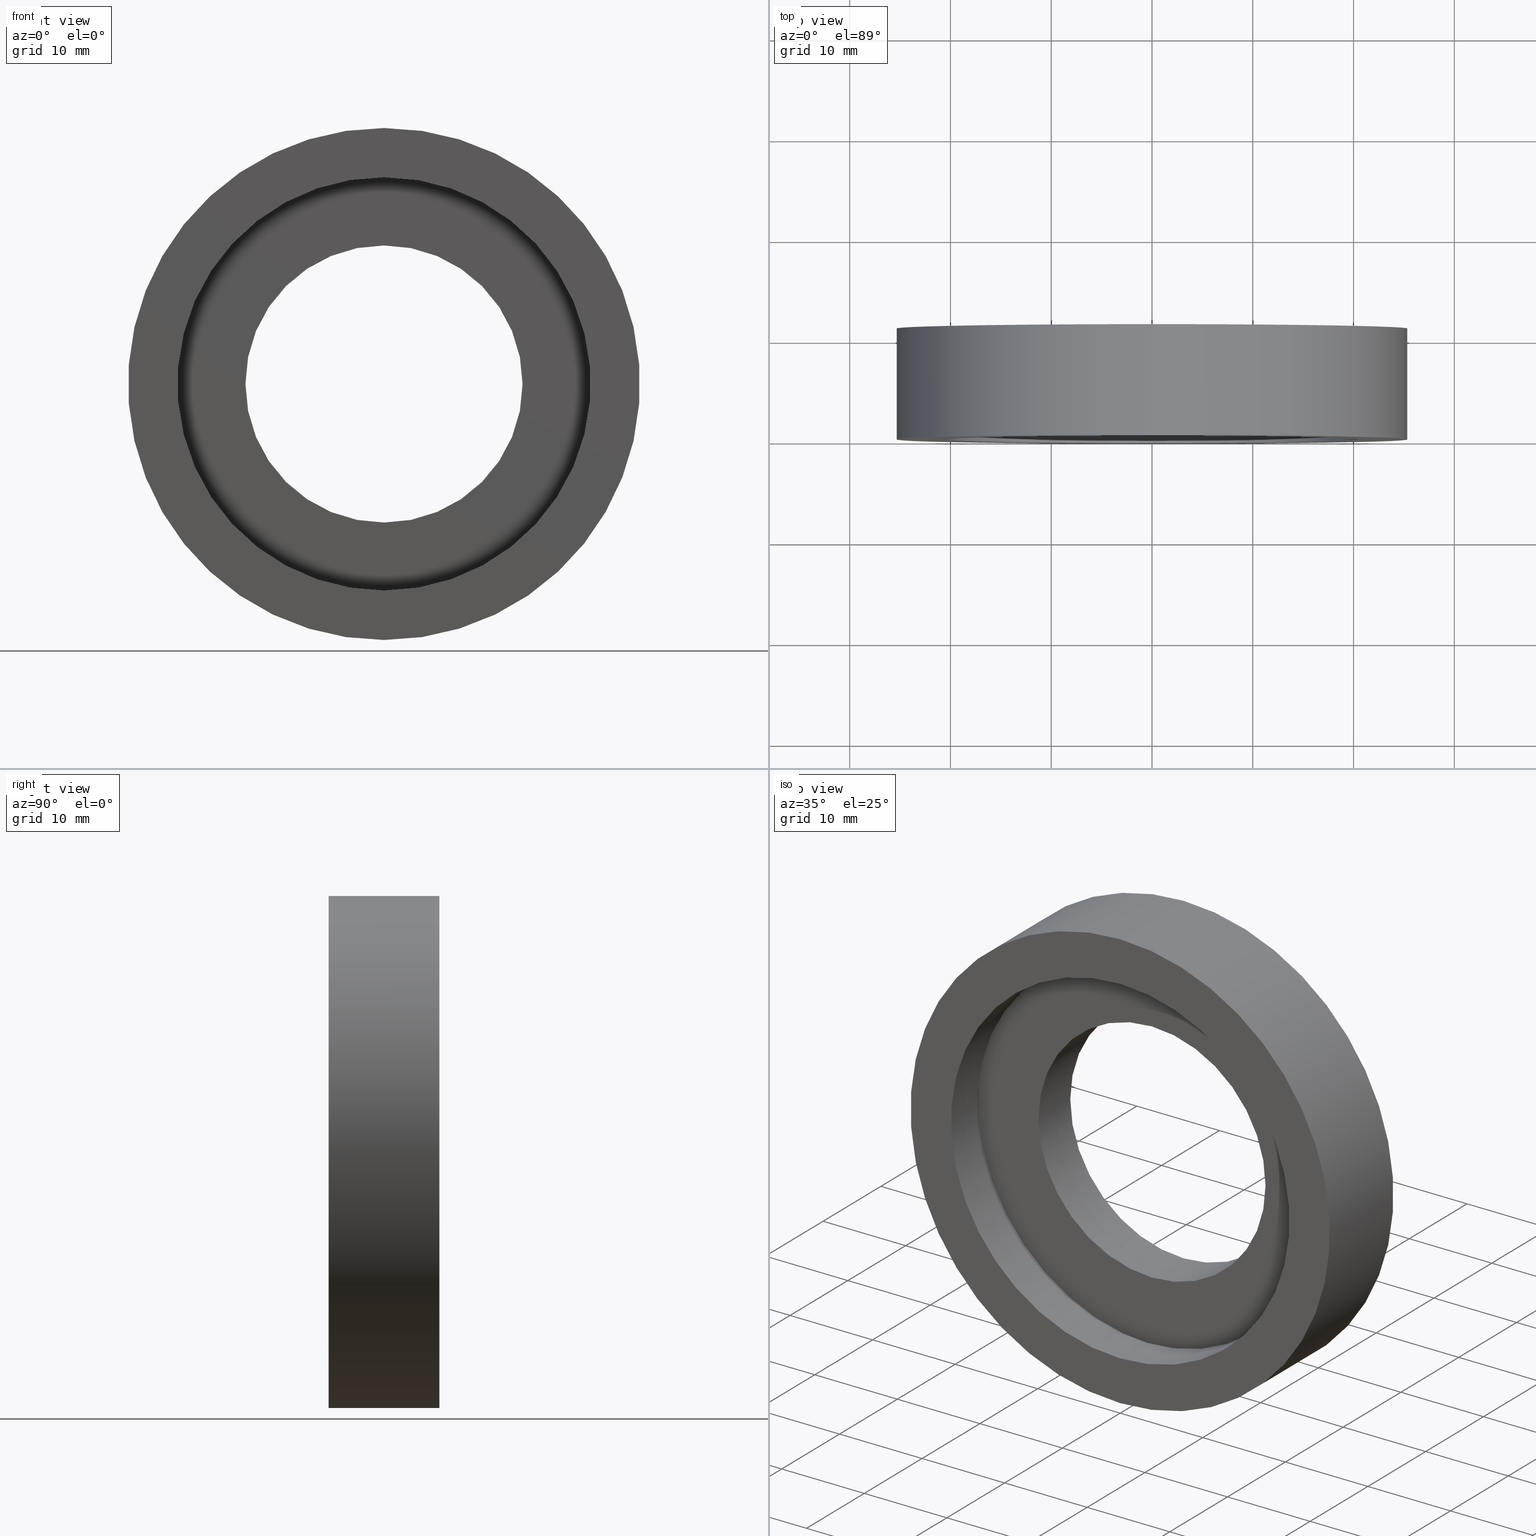
[diagram: canonical four-view strip — front | top / right | iso, engineering-drawing reading convention]
A machine part, canonical four-view strip (front | top / right | iso — engineering-drawing reading convention). The complete STEP part file that produces these views, byte-faithful:
ISO-10303-21;
HEADER;
FILE_DESCRIPTION (( 'STEP AP214' ),
    '1' );
FILE_NAME ('504041.STEP',
    '2019-10-09T03:24:06',
    ( 'user' ),
    ( '΢���й�' ),
    'SwSTEP 2.0',
    'SolidWorks 2016',
    '' );
FILE_SCHEMA (( 'AUTOMOTIVE_DESIGN' ));
ENDSEC;

DATA;
#1 = SURFACE_STYLE_FILL_AREA ( #204 ) ;
#2 = PRESENTATION_LAYER_ASSIGNMENT (  '', '', ( #27 ) ) ;
#3 = FACE_OUTER_BOUND ( 'NONE', #98, .T. ) ;
#4 = ORIENTED_EDGE ( 'NONE', *, *, #19, .F. ) ;
#5 = FACE_BOUND ( 'NONE', #137, .T. ) ;
#6 = AXIS2_PLACEMENT_3D ( 'NONE', #185, #59, #328 ) ;
#7 = DIRECTION ( 'NONE',  ( 0.0000000000000000000, 0.0000000000000000000, 1.000000000000000000 ) ) ;
#8 = SURFACE_SIDE_STYLE ('',( #36 ) ) ;
#9 = ORIENTED_EDGE ( 'NONE', *, *, #71, .T. ) ;
#10 = EDGE_CURVE ( 'NONE', #159, #322, #192, .T. ) ;
#11 =( NAMED_UNIT ( * ) SI_UNIT ( $, .STERADIAN. ) SOLID_ANGLE_UNIT ( ) );
#12 = ORIENTED_EDGE ( 'NONE', *, *, #39, .T. ) ;
#13 = PRODUCT_DEFINITION_FORMATION_WITH_SPECIFIED_SOURCE ( '�κ�', '', #194, .NOT_KNOWN. ) ;
#14 = EDGE_LOOP ( 'NONE', ( #216, #140, #412, #12 ) ) ;
#15 = DIRECTION ( 'NONE',  ( -0.0000000000000000000, 1.000000000000000000, -0.0000000000000000000 ) ) ;
#16 = CYLINDRICAL_SURFACE ( 'NONE', #421, 20.50000000000000700 ) ;
#17 = MECHANICAL_DESIGN_GEOMETRIC_PRESENTATION_REPRESENTATION (  '', ( #267 ), #230 ) ;
#18 = VERTEX_POINT ( 'NONE', #388 ) ;
#19 = EDGE_CURVE ( 'NONE', #63, #364, #218, .T. ) ;
#20 = PLANE ( 'NONE',  #143 ) ;
#21 = FACE_BOUND ( 'NONE', #189, .T. ) ;
#22 = CARTESIAN_POINT ( 'NONE',  ( 0.0000000000000000000, 0.0000000000000000000, 0.0000000000000000000 ) ) ;
#23 = DIRECTION ( 'NONE',  ( 0.0000000000000000000, 0.0000000000000000000, 1.000000000000000000 ) ) ;
#24 = CYLINDRICAL_SURFACE ( 'NONE', #134, 25.40000000000000200 ) ;
#25 = FILL_AREA_STYLE ('',( #45 ) ) ;
#26 = EDGE_LOOP ( 'NONE', ( #334, #349 ) ) ;
#27 = STYLED_ITEM ( 'NONE', ( #101 ), #184 ) ;
#28 = APPLICATION_PROTOCOL_DEFINITION ( 'draft international standard', 'automotive_design', 1998, #229 ) ;
#29 =( NAMED_UNIT ( * ) SI_UNIT ( $, .STERADIAN. ) SOLID_ANGLE_UNIT ( ) );
#30 = DIRECTION ( 'NONE',  ( -0.0000000000000000000, 1.000000000000000000, -0.0000000000000000000 ) ) ;
#31 = ORIENTED_EDGE ( 'NONE', *, *, #56, .F. ) ;
#32 = AXIS2_PLACEMENT_3D ( 'NONE', #423, #30, #244 ) ;
#33 = EDGE_CURVE ( 'NONE', #169, #241, #72, .T. ) ;
#34 =( LENGTH_UNIT ( ) NAMED_UNIT ( * ) SI_UNIT ( .MILLI., .METRE. ) );
#35 = AXIS2_PLACEMENT_3D ( 'NONE', #418, #285, #220 ) ;
#36 = SURFACE_STYLE_FILL_AREA ( #25 ) ;
#37 = CYLINDRICAL_SURFACE ( 'NONE', #119, 21.10000000000000900 ) ;
#38 = CLOSED_SHELL ( 'NONE', ( #312, #428, #279, #113, #394, #184, #355, #403, #368, #200, #317, #67 ) ) ;
#39 = EDGE_CURVE ( 'NONE', #133, #322, #307, .T. ) ;
#40 = EDGE_CURVE ( 'NONE', #159, #179, #259, .T. ) ;
#41 = CARTESIAN_POINT ( 'NONE',  ( 1.683889348827611400E-015, 60.02082041425541100, -13.75000000000000500 ) ) ;
#42 = PRESENTATION_STYLE_ASSIGNMENT (( #233 ) ) ;
#43 = COLOUR_RGB ( '',1.000000000000000000, 1.000000000000000000, 1.000000000000000000 ) ;
#44 = FILL_AREA_STYLE_COLOUR ( '', #320 ) ;
#45 = FILL_AREA_STYLE_COLOUR ( '', #269 ) ;
#46 = SURFACE_SIDE_STYLE ('',( #91 ) ) ;
#47 = DIRECTION ( 'NONE',  ( -0.0000000000000000000, 1.000000000000000000, -0.0000000000000000000 ) ) ;
#48 = EDGE_LOOP ( 'NONE', ( #186, #360 ) ) ;
#49 = AXIS2_PLACEMENT_3D ( 'NONE', #363, #180, #379 ) ;
#50 =( LENGTH_UNIT ( ) NAMED_UNIT ( * ) SI_UNIT ( .MILLI., .METRE. ) );
#51 = EDGE_CURVE ( 'NONE', #100, #169, #417, .T. ) ;
#52 = FACE_OUTER_BOUND ( 'NONE', #14, .T. ) ;
#53 = EDGE_LOOP ( 'NONE', ( #103, #69 ) ) ;
#54 = AXIS2_PLACEMENT_3D ( 'NONE', #431, #130, #255 ) ;
#55 = CARTESIAN_POINT ( 'NONE',  ( 0.0000000000000000000, 60.02082041425541100, 0.0000000000000000000 ) ) ;
#56 = EDGE_CURVE ( 'NONE', #63, #332, #433, .T. ) ;
#57 = FILL_AREA_STYLE ('',( #365 ) ) ;
#58 = SURFACE_STYLE_USAGE ( .BOTH. , #361 ) ;
#59 = DIRECTION ( 'NONE',  ( -0.0000000000000000000, 1.000000000000000000, -0.0000000000000000000 ) ) ;
#60 = CARTESIAN_POINT ( 'NONE',  ( 3.110602869834277300E-015, 0.0000000000000000000, -25.40000000000000200 ) ) ;
#61 = ORIENTED_EDGE ( 'NONE', *, *, #95, .F. ) ;
#62 = CIRCLE ( 'NONE', #35, 25.40000000000000200 ) ;
#63 = VERTEX_POINT ( 'NONE', #351 ) ;
#64 =( NAMED_UNIT ( * ) PLANE_ANGLE_UNIT ( ) SI_UNIT ( $, .RADIAN. ) );
#65 = DIRECTION ( 'NONE',  ( -0.0000000000000000000, 1.000000000000000000, -0.0000000000000000000 ) ) ;
#66 = EDGE_CURVE ( 'NONE', #266, #87, #114, .T. ) ;
#67 = ADVANCED_FACE ( 'NONE', ( #400 ), #144, .T. ) ;
#68 = SHAPE_DEFINITION_REPRESENTATION ( #339, #337 ) ;
#69 = ORIENTED_EDGE ( 'NONE', *, *, #76, .T. ) ;
#70 = EDGE_LOOP ( 'NONE', ( #181, #373, #9, #108 ) ) ;
#71 = EDGE_CURVE ( 'NONE', #322, #133, #395, .T. ) ;
#72 = LINE ( 'NONE', #41, #366 ) ;
#73 = DIRECTION ( 'NONE',  ( -0.0000000000000000000, 1.000000000000000000, -0.0000000000000000000 ) ) ;
#74 = EDGE_CURVE ( 'NONE', #241, #18, #150, .T. ) ;
#75 = DIRECTION ( 'NONE',  ( 0.0000000000000000000, -0.0000000000000000000, -1.000000000000000000 ) ) ;
#76 = EDGE_CURVE ( 'NONE', #357, #87, #136, .T. ) ;
#77 =( NAMED_UNIT ( * ) PLANE_ANGLE_UNIT ( ) SI_UNIT ( $, .RADIAN. ) );
#78 = AXIS2_PLACEMENT_3D ( 'NONE', #195, #260, #84 ) ;
#79 = DIRECTION ( 'NONE',  ( 0.0000000000000000000, 0.0000000000000000000, 1.000000000000000000 ) ) ;
#80 = PLANE ( 'NONE',  #375 ) ;
#81 = CARTESIAN_POINT ( 'NONE',  ( 0.0000000000000000000, 10.99999999999999600, 0.0000000000000000000 ) ) ;
#82 = CIRCLE ( 'NONE', #99, 25.40000000000000200 ) ;
#83 = PRESENTATION_STYLE_ASSIGNMENT (( #210 ) ) ;
#84 = DIRECTION ( 'NONE',  ( 0.0000000000000000000, 0.0000000000000000000, 1.000000000000000000 ) ) ;
#85 = UNCERTAINTY_MEASURE_WITH_UNIT (LENGTH_MEASURE( 1.000000000000000100E-005 ), #138, 'distance_accuracy_value', 'NONE');
#86 = EDGE_LOOP ( 'NONE', ( #197, #291, #386, #212 ) ) ;
#87 = VERTEX_POINT ( 'NONE', #256 ) ;
#88 = CARTESIAN_POINT ( 'NONE',  ( 1.683889348827611800E-015, 10.99999999999999600, -13.75000000000000900 ) ) ;
#89 = ORIENTED_EDGE ( 'NONE', *, *, #249, .T. ) ;
#90 = SURFACE_SIDE_STYLE ('',( #196 ) ) ;
#91 = SURFACE_STYLE_FILL_AREA ( #263 ) ;
#92 = EDGE_LOOP ( 'NONE', ( #112, #301 ) ) ;
#93 =( NAMED_UNIT ( * ) PLANE_ANGLE_UNIT ( ) SI_UNIT ( $, .RADIAN. ) );
#94 = DIRECTION ( 'NONE',  ( 0.0000000000000000000, 0.0000000000000000000, 1.000000000000000000 ) ) ;
#95 = EDGE_CURVE ( 'NONE', #100, #18, #162, .T. ) ;
#96 = AXIS2_PLACEMENT_3D ( 'NONE', #392, #198, #399 ) ;
#97 = DIRECTION ( 'NONE',  ( -0.0000000000000000000, 1.000000000000000000, -0.0000000000000000000 ) ) ;
#98 = EDGE_LOOP ( 'NONE', ( #89, #286, #311, #294 ) ) ;
#99 = AXIS2_PLACEMENT_3D ( 'NONE', #22, #129, #164 ) ;
#100 = VERTEX_POINT ( 'NONE', #206 ) ;
#101 = PRESENTATION_STYLE_ASSIGNMENT (( #58 ) ) ;
#102 = EDGE_CURVE ( 'NONE', #364, #126, #330, .T. ) ;
#103 = ORIENTED_EDGE ( 'NONE', *, *, #234, .T. ) ;
#104 = SURFACE_STYLE_USAGE ( .BOTH. , #142 ) ;
#105 = UNCERTAINTY_MEASURE_WITH_UNIT (LENGTH_MEASURE( 1.000000000000000100E-005 ), #115, 'distance_accuracy_value', 'NONE');
#106 = VECTOR ( 'NONE', #15, 1000.000000000000000 ) ;
#107 = CIRCLE ( 'NONE', #380, 21.10000000000000900 ) ;
#108 = ORIENTED_EDGE ( 'NONE', *, *, #158, .F. ) ;
#109 =( NAMED_UNIT ( * ) SI_UNIT ( $, .STERADIAN. ) SOLID_ANGLE_UNIT ( ) );
#110 = VECTOR ( 'NONE', #127, 1000.000000000000000 ) ;
#111 = DIRECTION ( 'NONE',  ( 0.0000000000000000000, 0.0000000000000000000, 1.000000000000000000 ) ) ;
#112 = ORIENTED_EDGE ( 'NONE', *, *, #39, .F. ) ;
#113 = ADVANCED_FACE ( 'NONE', ( #340 ), #362, .F. ) ;
#114 = LINE ( 'NONE', #165, #378 ) ;
#115 =( LENGTH_UNIT ( ) NAMED_UNIT ( * ) SI_UNIT ( .MILLI., .METRE. ) );
#116 = DIRECTION ( 'NONE',  ( -0.0000000000000000000, 1.000000000000000000, -0.0000000000000000000 ) ) ;
#117 = ORIENTED_EDGE ( 'NONE', *, *, #187, .F. ) ;
#118 =( NAMED_UNIT ( * ) SI_UNIT ( $, .STERADIAN. ) SOLID_ANGLE_UNIT ( ) );
#119 = AXIS2_PLACEMENT_3D ( 'NONE', #55, #270, #111 ) ;
#120 = CARTESIAN_POINT ( 'NONE',  ( 0.0000000000000000000, 10.99999999999999600, 0.0000000000000000000 ) ) ;
#121 = PRODUCT_RELATED_PRODUCT_CATEGORY ( 'part', '', ( #194 ) ) ;
#122 =( NAMED_UNIT ( * ) PLANE_ANGLE_UNIT ( ) SI_UNIT ( $, .RADIAN. ) );
#123 = EDGE_CURVE ( 'NONE', #18, #241, #419, .T. ) ;
#124 = CIRCLE ( 'NONE', #6, 20.50000000000000700 ) ;
#125 = PRODUCT_CONTEXT ( 'NONE', #331, 'mechanical' ) ;
#126 = VERTEX_POINT ( 'NONE', #371 ) ;
#127 = DIRECTION ( 'NONE',  ( -0.0000000000000000000, 1.000000000000000000, -0.0000000000000000000 ) ) ;
#128 =( LENGTH_UNIT ( ) NAMED_UNIT ( * ) SI_UNIT ( .MILLI., .METRE. ) );
#129 = DIRECTION ( 'NONE',  ( -0.0000000000000000000, 1.000000000000000000, -0.0000000000000000000 ) ) ;
#130 = DIRECTION ( 'NONE',  ( -0.0000000000000000000, 1.000000000000000000, -0.0000000000000000000 ) ) ;
#131 = ORIENTED_EDGE ( 'NONE', *, *, #313, .F. ) ;
#132 = DIRECTION ( 'NONE',  ( 0.0000000000000000000, 0.0000000000000000000, 1.000000000000000000 ) ) ;
#133 = VERTEX_POINT ( 'NONE', #239 ) ;
#134 = AXIS2_PLACEMENT_3D ( 'NONE', #432, #73, #424 ) ;
#135 = CARTESIAN_POINT ( 'NONE',  ( 0.0000000000000000000, 60.02082041425541100, 0.0000000000000000000 ) ) ;
#136 = CIRCLE ( 'NONE', #202, 25.40000000000000200 ) ;
#137 = EDGE_LOOP ( 'NONE', ( #354, #238 ) ) ;
#138 =( LENGTH_UNIT ( ) NAMED_UNIT ( * ) SI_UNIT ( .MILLI., .METRE. ) );
#139 = LINE ( 'NONE', #208, #106 ) ;
#140 = ORIENTED_EDGE ( 'NONE', *, *, #377, .F. ) ;
#141 = ORIENTED_EDGE ( 'NONE', *, *, #170, .F. ) ;
#142 = SURFACE_SIDE_STYLE ('',( #426 ) ) ;
#143 = AXIS2_PLACEMENT_3D ( 'NONE', #293, #240, #75 ) ;
#144 = CYLINDRICAL_SURFACE ( 'NONE', #237, 25.40000000000000200 ) ;
#145 = DIRECTION ( 'NONE',  ( 0.0000000000000000000, 0.0000000000000000000, 1.000000000000000000 ) ) ;
#146 =( GEOMETRIC_REPRESENTATION_CONTEXT ( 3 ) GLOBAL_UNCERTAINTY_ASSIGNED_CONTEXT ( ( #85 ) ) GLOBAL_UNIT_ASSIGNED_CONTEXT ( ( #138, #223, #29 ) ) REPRESENTATION_CONTEXT ( 'NONE', 'WORKASPACE' ) );
#147 = CARTESIAN_POINT ( 'NONE',  ( 0.0000000000000000000, 4.499999999999997300, 0.0000000000000000000 ) ) ;
#148 = SURFACE_STYLE_FILL_AREA ( #152 ) ;
#149 = STYLED_ITEM ( 'NONE', ( #83 ), #318 ) ;
#150 = CIRCLE ( 'NONE', #336, 13.75000000000000700 ) ;
#151 = EDGE_CURVE ( 'NONE', #397, #266, #248, .T. ) ;
#152 = FILL_AREA_STYLE ('',( #258 ) ) ;
#153 = CARTESIAN_POINT ( 'NONE',  ( 1.683889348827611400E-015, 5.499999999999998200, -13.75000000000000500 ) ) ;
#154 = MECHANICAL_DESIGN_GEOMETRIC_PRESENTATION_REPRESENTATION (  '', ( #149 ), #217 ) ;
#155 = CARTESIAN_POINT ( 'NONE',  ( 0.0000000000000000000, 60.02082041425541100, 21.10000000000000900 ) ) ;
#156 = UNCERTAINTY_MEASURE_WITH_UNIT (LENGTH_MEASURE( 1.000000000000000100E-005 ), #34, 'distance_accuracy_value', 'NONE');
#157 = EDGE_LOOP ( 'NONE', ( #117, #207, #215, #31 ) ) ;
#158 = EDGE_CURVE ( 'NONE', #179, #133, #211, .T. ) ;
#159 = VERTEX_POINT ( 'NONE', #275 ) ;
#160 = DIRECTION ( 'NONE',  ( -0.0000000000000000000, 1.000000000000000000, -0.0000000000000000000 ) ) ;
#161 = EDGE_LOOP ( 'NONE', ( #415, #274, #341, #429 ) ) ;
#162 = LINE ( 'NONE', #254, #411 ) ;
#163 = VECTOR ( 'NONE', #338, 1000.000000000000000 ) ;
#164 = DIRECTION ( 'NONE',  ( 0.0000000000000000000, 0.0000000000000000000, 1.000000000000000000 ) ) ;
#165 = CARTESIAN_POINT ( 'NONE',  ( 0.0000000000000000000, 60.02082041425541100, 25.40000000000000200 ) ) ;
#166 = DIRECTION ( 'NONE',  ( 0.0000000000000000000, 0.0000000000000000000, 1.000000000000000000 ) ) ;
#167 = DIRECTION ( 'NONE',  ( -0.0000000000000000000, 1.000000000000000000, 0.0000000000000000000 ) ) ;
#168 = DIRECTION ( 'NONE',  ( 0.0000000000000000000, 0.0000000000000000000, 1.000000000000000000 ) ) ;
#169 = VERTEX_POINT ( 'NONE', #153 ) ;
#170 = EDGE_CURVE ( 'NONE', #126, #332, #232, .T. ) ;
#171 = DIRECTION ( 'NONE',  ( -0.0000000000000000000, 1.000000000000000000, -0.0000000000000000000 ) ) ;
#172 = FACE_OUTER_BOUND ( 'NONE', #272, .T. ) ;
#173 = ORIENTED_EDGE ( 'NONE', *, *, #56, .T. ) ;
#174 = PRESENTATION_LAYER_ASSIGNMENT (  '', '', ( #149 ) ) ;
#175 = VECTOR ( 'NONE', #213, 1000.000000000000000 ) ;
#176 = FACE_OUTER_BOUND ( 'NONE', #48, .T. ) ;
#177 = APPLICATION_PROTOCOL_DEFINITION ( 'draft international standard', 'automotive_design', 1998, #331 ) ;
#178 = DIRECTION ( 'NONE',  ( -0.0000000000000000000, 1.000000000000000000, -0.0000000000000000000 ) ) ;
#179 = VERTEX_POINT ( 'NONE', #205 ) ;
#180 = DIRECTION ( 'NONE',  ( -0.0000000000000000000, 1.000000000000000000, -0.0000000000000000000 ) ) ;
#181 = ORIENTED_EDGE ( 'NONE', *, *, #40, .F. ) ;
#182 = DIRECTION ( 'NONE',  ( -0.0000000000000000000, 1.000000000000000000, -0.0000000000000000000 ) ) ;
#183 = FACE_OUTER_BOUND ( 'NONE', #92, .T. ) ;
#184 = ADVANCED_FACE ( 'NONE', ( #261 ), #16, .F. ) ;
#185 = CARTESIAN_POINT ( 'NONE',  ( 0.0000000000000000000, 0.0000000000000000000, 0.0000000000000000000 ) ) ;
#186 = ORIENTED_EDGE ( 'NONE', *, *, #249, .F. ) ;
#187 = EDGE_CURVE ( 'NONE', #364, #63, #124, .T. ) ;
#188 = AXIS2_PLACEMENT_3D ( 'NONE', #289, #160, #23 ) ;
#189 = EDGE_LOOP ( 'NONE', ( #228, #316 ) ) ;
#190 = CARTESIAN_POINT ( 'NONE',  ( 0.0000000000000000000, 5.499999999999998200, 0.0000000000000000000 ) ) ;
#191 =( GEOMETRIC_REPRESENTATION_CONTEXT ( 3 ) GLOBAL_UNCERTAINTY_ASSIGNED_CONTEXT ( ( #105 ) ) GLOBAL_UNIT_ASSIGNED_CONTEXT ( ( #115, #64, #109 ) ) REPRESENTATION_CONTEXT ( 'NONE', 'WORKASPACE' ) );
#192 = LINE ( 'NONE', #280, #110 ) ;
#193 = COLOUR_RGB ( '',1.000000000000000000, 1.000000000000000000, 1.000000000000000000 ) ;
#194 = PRODUCT ( '504041', '504041', '', ( #125 ) ) ;
#195 = CARTESIAN_POINT ( 'NONE',  ( 0.0000000000000000000, 60.02082041425541100, 0.0000000000000000000 ) ) ;
#196 = SURFACE_STYLE_FILL_AREA ( #57 ) ;
#197 = ORIENTED_EDGE ( 'NONE', *, *, #33, .F. ) ;
#198 = DIRECTION ( 'NONE',  ( -0.0000000000000000000, 1.000000000000000000, -0.0000000000000000000 ) ) ;
#199 = SURFACE_SIDE_STYLE ('',( #148 ) ) ;
#200 = ADVANCED_FACE ( 'NONE', ( #319 ), #243, .F. ) ;
#201 = CARTESIAN_POINT ( 'NONE',  ( 0.0000000000000000000, 0.0000000000000000000, 0.0000000000000000000 ) ) ;
#202 = AXIS2_PLACEMENT_3D ( 'NONE', #81, #308, #79 ) ;
#203 = FACE_OUTER_BOUND ( 'NONE', #70, .T. ) ;
#204 = FILL_AREA_STYLE ('',( #209 ) ) ;
#205 = CARTESIAN_POINT ( 'NONE',  ( 0.0000000000000000000, 4.499999999999997300, 21.10000000000000900 ) ) ;
#206 = CARTESIAN_POINT ( 'NONE',  ( 0.0000000000000000000, 5.499999999999998200, 13.75000000000000500 ) ) ;
#207 = ORIENTED_EDGE ( 'NONE', *, *, #102, .T. ) ;
#208 = CARTESIAN_POINT ( 'NONE',  ( 3.110602869834277300E-015, 60.02082041425541100, -25.40000000000000200 ) ) ;
#209 = FILL_AREA_STYLE_COLOUR ( '', #193 ) ;
#210 = SURFACE_STYLE_USAGE ( .BOTH. , #46 ) ;
#211 = LINE ( 'NONE', #155, #163 ) ;
#212 = ORIENTED_EDGE ( 'NONE', *, *, #123, .T. ) ;
#213 = DIRECTION ( 'NONE',  ( -0.0000000000000000000, 1.000000000000000000, -0.0000000000000000000 ) ) ;
#214 = PRODUCT_DEFINITION_CONTEXT ( 'detailed design', #229, 'design' ) ;
#215 = ORIENTED_EDGE ( 'NONE', *, *, #170, .T. ) ;
#216 = ORIENTED_EDGE ( 'NONE', *, *, #10, .F. ) ;
#217 =( GEOMETRIC_REPRESENTATION_CONTEXT ( 3 ) GLOBAL_UNCERTAINTY_ASSIGNED_CONTEXT ( ( #156 ) ) GLOBAL_UNIT_ASSIGNED_CONTEXT ( ( #34, #122, #11 ) ) REPRESENTATION_CONTEXT ( 'NONE', 'WORKASPACE' ) );
#218 = CIRCLE ( 'NONE', #350, 20.50000000000000700 ) ;
#219 = PRESENTATION_STYLE_ASSIGNMENT (( #324 ) ) ;
#220 = DIRECTION ( 'NONE',  ( 0.0000000000000000000, 0.0000000000000000000, 1.000000000000000000 ) ) ;
#221 = MECHANICAL_DESIGN_GEOMETRIC_PRESENTATION_REPRESENTATION (  '', ( #396 ), #191 ) ;
#222 = CARTESIAN_POINT ( 'NONE',  ( 0.0000000000000000000, 4.499999999999997300, 0.0000000000000000000 ) ) ;
#223 =( NAMED_UNIT ( * ) PLANE_ANGLE_UNIT ( ) SI_UNIT ( $, .RADIAN. ) );
#224 =( NAMED_UNIT ( * ) PLANE_ANGLE_UNIT ( ) SI_UNIT ( $, .RADIAN. ) );
#225 = EDGE_CURVE ( 'NONE', #332, #126, #409, .T. ) ;
#226 = CARTESIAN_POINT ( 'NONE',  ( 0.0000000000000000000, 60.02082041425541100, 0.0000000000000000000 ) ) ;
#227 = DIRECTION ( 'NONE',  ( -0.0000000000000000000, 1.000000000000000000, -0.0000000000000000000 ) ) ;
#228 = ORIENTED_EDGE ( 'NONE', *, *, #19, .T. ) ;
#229 = APPLICATION_CONTEXT ( 'automotive_design' ) ;
#230 =( GEOMETRIC_REPRESENTATION_CONTEXT ( 3 ) GLOBAL_UNCERTAINTY_ASSIGNED_CONTEXT ( ( #283 ) ) GLOBAL_UNIT_ASSIGNED_CONTEXT ( ( #356, #224, #327 ) ) REPRESENTATION_CONTEXT ( 'NONE', 'WORKASPACE' ) );
#231 = DIRECTION ( 'NONE',  ( -0.0000000000000000000, 1.000000000000000000, -0.0000000000000000000 ) ) ;
#232 = CIRCLE ( 'NONE', #49, 20.50000000000000700 ) ;
#233 = SURFACE_STYLE_USAGE ( .BOTH. , #90 ) ;
#234 = EDGE_CURVE ( 'NONE', #87, #357, #62, .T. ) ;
#235 = ORIENTED_EDGE ( 'NONE', *, *, #313, .T. ) ;
#236 = DIRECTION ( 'NONE',  ( 0.0000000000000000000, 0.0000000000000000000, 1.000000000000000000 ) ) ;
#237 = AXIS2_PLACEMENT_3D ( 'NONE', #135, #178, #168 ) ;
#238 = ORIENTED_EDGE ( 'NONE', *, *, #74, .F. ) ;
#239 = CARTESIAN_POINT ( 'NONE',  ( 0.0000000000000000000, 5.499999999999998200, 21.10000000000000900 ) ) ;
#240 = DIRECTION ( 'NONE',  ( 0.0000000000000000000, -1.000000000000000000, 0.0000000000000000000 ) ) ;
#241 = VERTEX_POINT ( 'NONE', #88 ) ;
#242 = CARTESIAN_POINT ( 'NONE',  ( 2.510525938252074900E-015, 0.0000000000000000000, -20.50000000000000700 ) ) ;
#243 = CYLINDRICAL_SURFACE ( 'NONE', #78, 13.75000000000000500 ) ;
#244 = DIRECTION ( 'NONE',  ( 0.0000000000000000000, 0.0000000000000000000, 1.000000000000000000 ) ) ;
#245 = CARTESIAN_POINT ( 'NONE',  ( 0.0000000000000000000, 60.02082041425541100, 0.0000000000000000000 ) ) ;
#246 = PRESENTATION_LAYER_ASSIGNMENT (  '', '', ( #268 ) ) ;
#247 = PRODUCT_DEFINITION ( 'δ֪', '', #13, #214 ) ;
#248 = CIRCLE ( 'NONE', #32, 25.40000000000000200 ) ;
#249 = EDGE_CURVE ( 'NONE', #266, #397, #82, .T. ) ;
#250 = ORIENTED_EDGE ( 'NONE', *, *, #225, .T. ) ;
#251 = DIRECTION ( 'NONE',  ( -0.0000000000000000000, 1.000000000000000000, -0.0000000000000000000 ) ) ;
#252 = PRESENTATION_STYLE_ASSIGNMENT (( #104 ) ) ;
#253 = EDGE_LOOP ( 'NONE', ( #290, #235 ) ) ;
#254 = CARTESIAN_POINT ( 'NONE',  ( 0.0000000000000000000, 60.02082041425541100, 13.75000000000000500 ) ) ;
#255 = DIRECTION ( 'NONE',  ( 0.0000000000000000000, 0.0000000000000000000, 1.000000000000000000 ) ) ;
#256 = CARTESIAN_POINT ( 'NONE',  ( 0.0000000000000000000, 10.99999999999999600, 25.40000000000000200 ) ) ;
#257 = ORIENTED_EDGE ( 'NONE', *, *, #74, .T. ) ;
#258 = FILL_AREA_STYLE_COLOUR ( '', #303 ) ;
#259 = CIRCLE ( 'NONE', #359, 21.10000000000000900 ) ;
#260 = DIRECTION ( 'NONE',  ( -0.0000000000000000000, 1.000000000000000000, -0.0000000000000000000 ) ) ;
#261 = FACE_OUTER_BOUND ( 'NONE', #384, .T. ) ;
#262 = PRESENTATION_LAYER_ASSIGNMENT (  '', '', ( #396 ) ) ;
#263 = FILL_AREA_STYLE ('',( #44 ) ) ;
#264 = DIRECTION ( 'NONE',  ( -0.0000000000000000000, 1.000000000000000000, -0.0000000000000000000 ) ) ;
#265 = COLOUR_RGB ( '',1.000000000000000000, 1.000000000000000000, 1.000000000000000000 ) ;
#266 = VERTEX_POINT ( 'NONE', #374 ) ;
#267 = STYLED_ITEM ( 'NONE', ( #219 ), #337 ) ;
#268 = STYLED_ITEM ( 'NONE', ( #42 ), #428 ) ;
#269 = COLOUR_RGB ( '',1.000000000000000000, 1.000000000000000000, 1.000000000000000000 ) ;
#270 = DIRECTION ( 'NONE',  ( -0.0000000000000000000, 1.000000000000000000, -0.0000000000000000000 ) ) ;
#271 = AXIS2_PLACEMENT_3D ( 'NONE', #335, #310, #358 ) ;
#272 = EDGE_LOOP ( 'NONE', ( #131, #413, #257, #61 ) ) ;
#273 = UNCERTAINTY_MEASURE_WITH_UNIT (LENGTH_MEASURE( 1.000000000000000100E-005 ), #128, 'distance_accuracy_value', 'NONE');
#274 = ORIENTED_EDGE ( 'NONE', *, *, #151, .T. ) ;
#275 = CARTESIAN_POINT ( 'NONE',  ( 2.584004746200916200E-015, 4.499999999999997300, -21.10000000000000900 ) ) ;
#276 =( NAMED_UNIT ( * ) PLANE_ANGLE_UNIT ( ) SI_UNIT ( $, .RADIAN. ) );
#277 = EDGE_LOOP ( 'NONE', ( #345, #141 ) ) ;
#278 = FILL_AREA_STYLE_COLOUR ( '', #265 ) ;
#279 = ADVANCED_FACE ( 'NONE', ( #203 ), #37, .F. ) ;
#280 = CARTESIAN_POINT ( 'NONE',  ( 2.584004746200916200E-015, 60.02082041425541100, -21.10000000000000900 ) ) ;
#281 = AXIS2_PLACEMENT_3D ( 'NONE', #347, #251, #132 ) ;
#282 = CYLINDRICAL_SURFACE ( 'NONE', #376, 21.10000000000000900 ) ;
#283 = UNCERTAINTY_MEASURE_WITH_UNIT (LENGTH_MEASURE( 1.000000000000000100E-005 ), #356, 'distance_accuracy_value', 'NONE');
#284 = CARTESIAN_POINT ( 'NONE',  ( 0.0000000000000000000, 10.99999999999999600, 0.0000000000000000000 ) ) ;
#285 = DIRECTION ( 'NONE',  ( -0.0000000000000000000, 1.000000000000000000, -0.0000000000000000000 ) ) ;
#286 = ORIENTED_EDGE ( 'NONE', *, *, #387, .T. ) ;
#287 = DIRECTION ( 'NONE',  ( -0.0000000000000000000, 1.000000000000000000, -0.0000000000000000000 ) ) ;
#288 = DIRECTION ( 'NONE',  ( 0.0000000000000000000, 0.0000000000000000000, 1.000000000000000000 ) ) ;
#289 = CARTESIAN_POINT ( 'NONE',  ( 0.0000000000000000000, 5.499999999999998200, 0.0000000000000000000 ) ) ;
#290 = ORIENTED_EDGE ( 'NONE', *, *, #51, .T. ) ;
#291 = ORIENTED_EDGE ( 'NONE', *, *, #51, .F. ) ;
#292 = AXIS2_PLACEMENT_3D ( 'NONE', #430, #434, #407 ) ;
#293 = CARTESIAN_POINT ( 'NONE',  ( 13.75000000000000700, 10.99999999999999800, 0.0000000000000000000 ) ) ;
#294 = ORIENTED_EDGE ( 'NONE', *, *, #66, .F. ) ;
#295 = FACE_BOUND ( 'NONE', #253, .T. ) ;
#296 = DIRECTION ( 'NONE',  ( -0.0000000000000000000, 1.000000000000000000, 0.0000000000000000000 ) ) ;
#297 = DIRECTION ( 'NONE',  ( 0.0000000000000000000, 0.0000000000000000000, 1.000000000000000000 ) ) ;
#298 = PLANE ( 'NONE',  #292 ) ;
#299 = DIRECTION ( 'NONE',  ( 0.0000000000000000000, 0.0000000000000000000, 1.000000000000000000 ) ) ;
#300 = FACE_BOUND ( 'NONE', #277, .T. ) ;
#301 = ORIENTED_EDGE ( 'NONE', *, *, #71, .F. ) ;
#302 = MECHANICAL_DESIGN_GEOMETRIC_PRESENTATION_REPRESENTATION (  '', ( #268 ), #369 ) ;
#303 = COLOUR_RGB ( '',1.000000000000000000, 1.000000000000000000, 1.000000000000000000 ) ;
#304 = DIRECTION ( 'NONE',  ( -0.0000000000000000000, 1.000000000000000000, -0.0000000000000000000 ) ) ;
#305 = AXIS2_PLACEMENT_3D ( 'NONE', #120, #116, #94 ) ;
#306 = DIRECTION ( 'NONE',  ( -0.0000000000000000000, 1.000000000000000000, -0.0000000000000000000 ) ) ;
#307 = CIRCLE ( 'NONE', #281, 21.10000000000000900 ) ;
#308 = DIRECTION ( 'NONE',  ( -0.0000000000000000000, 1.000000000000000000, -0.0000000000000000000 ) ) ;
#309 = AXIS2_PLACEMENT_3D ( 'NONE', #190, #404, #297 ) ;
#310 = DIRECTION ( 'NONE',  ( 0.0000000000000000000, 0.0000000000000000000, 1.000000000000000000 ) ) ;
#311 = ORIENTED_EDGE ( 'NONE', *, *, #234, .F. ) ;
#312 = ADVANCED_FACE ( 'NONE', ( #3 ), #24, .T. ) ;
#313 = EDGE_CURVE ( 'NONE', #169, #100, #390, .T. ) ;
#314 = CARTESIAN_POINT ( 'NONE',  ( 0.0000000000000000000, 60.02082041425541100, 20.50000000000000700 ) ) ;
#315 = CARTESIAN_POINT ( 'NONE',  ( 0.0000000000000000000, 60.02082041425541100, 0.0000000000000000000 ) ) ;
#316 = ORIENTED_EDGE ( 'NONE', *, *, #187, .T. ) ;
#317 = ADVANCED_FACE ( 'NONE', ( #5, #344 ), #20, .F. ) ;
#318 = MANIFOLD_SOLID_BREP ( '��ת1', #38 ) ;
#319 = FACE_OUTER_BOUND ( 'NONE', #86, .T. ) ;
#320 = COLOUR_RGB ( '',1.000000000000000000, 1.000000000000000000, 1.000000000000000000 ) ;
#321 = FILL_AREA_STYLE ('',( #278 ) ) ;
#322 = VERTEX_POINT ( 'NONE', #367 ) ;
#323 = AXIS2_PLACEMENT_3D ( 'NONE', #414, #167, #288 ) ;
#324 = SURFACE_STYLE_USAGE ( .BOTH. , #199 ) ;
#325 = SURFACE_STYLE_USAGE ( .BOTH. , #8 ) ;
#326 = CARTESIAN_POINT ( 'NONE',  ( 21.10000000000000900, 5.499999999999998200, 0.0000000000000000000 ) ) ;
#327 =( NAMED_UNIT ( * ) SI_UNIT ( $, .STERADIAN. ) SOLID_ANGLE_UNIT ( ) );
#328 = DIRECTION ( 'NONE',  ( 0.0000000000000000000, 0.0000000000000000000, 1.000000000000000000 ) ) ;
#329 =( NAMED_UNIT ( * ) SI_UNIT ( $, .STERADIAN. ) SOLID_ANGLE_UNIT ( ) );
#330 = LINE ( 'NONE', #401, #175 ) ;
#331 = APPLICATION_CONTEXT ( 'automotive_design' ) ;
#332 = VERTEX_POINT ( 'NONE', #405 ) ;
#333 = PRESENTATION_LAYER_ASSIGNMENT (  '', '', ( #267 ) ) ;
#334 = ORIENTED_EDGE ( 'NONE', *, *, #377, .T. ) ;
#335 = CARTESIAN_POINT ( 'NONE',  ( 0.0000000000000000000, 0.0000000000000000000, 0.0000000000000000000 ) ) ;
#336 = AXIS2_PLACEMENT_3D ( 'NONE', #284, #171, #299 ) ;
#337 = ADVANCED_BREP_SHAPE_REPRESENTATION ( '504041', ( #318, #271 ), #146 ) ;
#338 = DIRECTION ( 'NONE',  ( -0.0000000000000000000, 1.000000000000000000, -0.0000000000000000000 ) ) ;
#339 = PRODUCT_DEFINITION_SHAPE ( 'NONE', 'NONE',  #247 ) ;
#340 = FACE_OUTER_BOUND ( 'NONE', #157, .T. ) ;
#341 = ORIENTED_EDGE ( 'NONE', *, *, #66, .T. ) ;
#342 = VECTOR ( 'NONE', #389, 1000.000000000000000 ) ;
#343 = MECHANICAL_DESIGN_GEOMETRIC_PRESENTATION_REPRESENTATION (  '', ( #27 ), #348 ) ;
#344 = FACE_OUTER_BOUND ( 'NONE', #53, .T. ) ;
#345 = ORIENTED_EDGE ( 'NONE', *, *, #225, .F. ) ;
#346 = DIRECTION ( 'NONE',  ( 0.0000000000000000000, 0.0000000000000000000, 1.000000000000000000 ) ) ;
#347 = CARTESIAN_POINT ( 'NONE',  ( 0.0000000000000000000, 5.499999999999998200, 0.0000000000000000000 ) ) ;
#348 =( GEOMETRIC_REPRESENTATION_CONTEXT ( 3 ) GLOBAL_UNCERTAINTY_ASSIGNED_CONTEXT ( ( #382 ) ) GLOBAL_UNIT_ASSIGNED_CONTEXT ( ( #50, #77, #118 ) ) REPRESENTATION_CONTEXT ( 'NONE', 'WORKASPACE' ) );
#349 = ORIENTED_EDGE ( 'NONE', *, *, #40, .T. ) ;
#350 = AXIS2_PLACEMENT_3D ( 'NONE', #201, #231, #7 ) ;
#351 = CARTESIAN_POINT ( 'NONE',  ( 0.0000000000000000000, 0.0000000000000000000, 20.50000000000000700 ) ) ;
#352 = CARTESIAN_POINT ( 'NONE',  ( 0.0000000000000000000, 60.02082041425541100, 0.0000000000000000000 ) ) ;
#353 = CYLINDRICAL_SURFACE ( 'NONE', #383, 13.75000000000000500 ) ;
#354 = ORIENTED_EDGE ( 'NONE', *, *, #123, .F. ) ;
#355 = ADVANCED_FACE ( 'NONE', ( #300, #381 ), #298, .F. ) ;
#356 =( LENGTH_UNIT ( ) NAMED_UNIT ( * ) SI_UNIT ( .MILLI., .METRE. ) );
#357 = VERTEX_POINT ( 'NONE', #385 ) ;
#358 = DIRECTION ( 'NONE',  ( 1.000000000000000000, 0.0000000000000000000, 0.0000000000000000000 ) ) ;
#359 = AXIS2_PLACEMENT_3D ( 'NONE', #222, #47, #145 ) ;
#360 = ORIENTED_EDGE ( 'NONE', *, *, #151, .F. ) ;
#361 = SURFACE_SIDE_STYLE ('',( #1 ) ) ;
#362 = CYLINDRICAL_SURFACE ( 'NONE', #393, 20.50000000000000700 ) ;
#363 = CARTESIAN_POINT ( 'NONE',  ( 0.0000000000000000000, 4.499999999999997300, 0.0000000000000000000 ) ) ;
#364 = VERTEX_POINT ( 'NONE', #242 ) ;
#365 = FILL_AREA_STYLE_COLOUR ( '', #43 ) ;
#366 = VECTOR ( 'NONE', #287, 1000.000000000000000 ) ;
#367 = CARTESIAN_POINT ( 'NONE',  ( 2.584004746200916200E-015, 5.499999999999998200, -21.10000000000000900 ) ) ;
#368 = ADVANCED_FACE ( 'NONE', ( #183, #295 ), #80, .F. ) ;
#369 =( GEOMETRIC_REPRESENTATION_CONTEXT ( 3 ) GLOBAL_UNCERTAINTY_ASSIGNED_CONTEXT ( ( #273 ) ) GLOBAL_UNIT_ASSIGNED_CONTEXT ( ( #128, #93, #406 ) ) REPRESENTATION_CONTEXT ( 'NONE', 'WORKASPACE' ) );
#370 = STYLED_ITEM ( 'NONE', ( #427 ), #200 ) ;
#371 = CARTESIAN_POINT ( 'NONE',  ( 2.510525938252074900E-015, 4.499999999999997300, -20.50000000000000700 ) ) ;
#372 =( GEOMETRIC_REPRESENTATION_CONTEXT ( 3 ) GLOBAL_UNCERTAINTY_ASSIGNED_CONTEXT ( ( #425 ) ) GLOBAL_UNIT_ASSIGNED_CONTEXT ( ( #391, #276, #329 ) ) REPRESENTATION_CONTEXT ( 'NONE', 'WORKASPACE' ) );
#373 = ORIENTED_EDGE ( 'NONE', *, *, #10, .T. ) ;
#374 = CARTESIAN_POINT ( 'NONE',  ( 0.0000000000000000000, 0.0000000000000000000, 25.40000000000000200 ) ) ;
#375 = AXIS2_PLACEMENT_3D ( 'NONE', #326, #296, #346 ) ;
#376 = AXIS2_PLACEMENT_3D ( 'NONE', #315, #97, #398 ) ;
#377 = EDGE_CURVE ( 'NONE', #179, #159, #107, .T. ) ;
#378 = VECTOR ( 'NONE', #306, 1000.000000000000000 ) ;
#379 = DIRECTION ( 'NONE',  ( 0.0000000000000000000, 0.0000000000000000000, 1.000000000000000000 ) ) ;
#380 = AXIS2_PLACEMENT_3D ( 'NONE', #147, #182, #420 ) ;
#381 = FACE_OUTER_BOUND ( 'NONE', #26, .T. ) ;
#382 = UNCERTAINTY_MEASURE_WITH_UNIT (LENGTH_MEASURE( 1.000000000000000100E-005 ), #50, 'distance_accuracy_value', 'NONE');
#383 = AXIS2_PLACEMENT_3D ( 'NONE', #245, #304, #422 ) ;
#384 = EDGE_LOOP ( 'NONE', ( #410, #4, #173, #250 ) ) ;
#385 = CARTESIAN_POINT ( 'NONE',  ( 3.110602869834277300E-015, 10.99999999999999600, -25.40000000000000200 ) ) ;
#386 = ORIENTED_EDGE ( 'NONE', *, *, #95, .T. ) ;
#387 = EDGE_CURVE ( 'NONE', #397, #357, #139, .T. ) ;
#388 = CARTESIAN_POINT ( 'NONE',  ( 0.0000000000000000000, 10.99999999999999600, 13.75000000000000700 ) ) ;
#389 = DIRECTION ( 'NONE',  ( -0.0000000000000000000, 1.000000000000000000, -0.0000000000000000000 ) ) ;
#390 = CIRCLE ( 'NONE', #96, 13.75000000000000500 ) ;
#391 =( LENGTH_UNIT ( ) NAMED_UNIT ( * ) SI_UNIT ( .MILLI., .METRE. ) );
#392 = CARTESIAN_POINT ( 'NONE',  ( 0.0000000000000000000, 5.499999999999998200, 0.0000000000000000000 ) ) ;
#393 = AXIS2_PLACEMENT_3D ( 'NONE', #226, #65, #236 ) ;
#394 = ADVANCED_FACE ( 'NONE', ( #176, #21 ), #416, .F. ) ;
#395 = CIRCLE ( 'NONE', #309, 21.10000000000000900 ) ;
#396 = STYLED_ITEM ( 'NONE', ( #252 ), #113 ) ;
#397 = VERTEX_POINT ( 'NONE', #60 ) ;
#398 = DIRECTION ( 'NONE',  ( 0.0000000000000000000, 0.0000000000000000000, 1.000000000000000000 ) ) ;
#399 = DIRECTION ( 'NONE',  ( 0.0000000000000000000, 0.0000000000000000000, 1.000000000000000000 ) ) ;
#400 = FACE_OUTER_BOUND ( 'NONE', #161, .T. ) ;
#401 = CARTESIAN_POINT ( 'NONE',  ( 2.510525938252074900E-015, 60.02082041425541100, -20.50000000000000700 ) ) ;
#402 = MECHANICAL_DESIGN_GEOMETRIC_PRESENTATION_REPRESENTATION (  '', ( #370 ), #372 ) ;
#403 = ADVANCED_FACE ( 'NONE', ( #52 ), #282, .F. ) ;
#404 = DIRECTION ( 'NONE',  ( -0.0000000000000000000, 1.000000000000000000, -0.0000000000000000000 ) ) ;
#405 = CARTESIAN_POINT ( 'NONE',  ( 0.0000000000000000000, 4.499999999999997300, 20.50000000000000700 ) ) ;
#406 =( NAMED_UNIT ( * ) SI_UNIT ( $, .STERADIAN. ) SOLID_ANGLE_UNIT ( ) );
#407 = DIRECTION ( 'NONE',  ( 0.0000000000000000000, -0.0000000000000000000, -1.000000000000000000 ) ) ;
#408 = PRESENTATION_LAYER_ASSIGNMENT (  '', '', ( #370 ) ) ;
#409 = CIRCLE ( 'NONE', #54, 20.50000000000000700 ) ;
#410 = ORIENTED_EDGE ( 'NONE', *, *, #102, .F. ) ;
#411 = VECTOR ( 'NONE', #264, 1000.000000000000000 ) ;
#412 = ORIENTED_EDGE ( 'NONE', *, *, #158, .T. ) ;
#413 = ORIENTED_EDGE ( 'NONE', *, *, #33, .T. ) ;
#414 = CARTESIAN_POINT ( 'NONE',  ( 25.40000000000000200, -3.000384657911011900E-016, 0.0000000000000000000 ) ) ;
#415 = ORIENTED_EDGE ( 'NONE', *, *, #387, .F. ) ;
#416 = PLANE ( 'NONE',  #323 ) ;
#417 = CIRCLE ( 'NONE', #188, 13.75000000000000500 ) ;
#418 = CARTESIAN_POINT ( 'NONE',  ( 0.0000000000000000000, 10.99999999999999600, 0.0000000000000000000 ) ) ;
#419 = CIRCLE ( 'NONE', #305, 13.75000000000000700 ) ;
#420 = DIRECTION ( 'NONE',  ( 0.0000000000000000000, 0.0000000000000000000, 1.000000000000000000 ) ) ;
#421 = AXIS2_PLACEMENT_3D ( 'NONE', #352, #227, #166 ) ;
#422 = DIRECTION ( 'NONE',  ( 0.0000000000000000000, 0.0000000000000000000, 1.000000000000000000 ) ) ;
#423 = CARTESIAN_POINT ( 'NONE',  ( 0.0000000000000000000, 0.0000000000000000000, 0.0000000000000000000 ) ) ;
#424 = DIRECTION ( 'NONE',  ( 0.0000000000000000000, 0.0000000000000000000, 1.000000000000000000 ) ) ;
#425 = UNCERTAINTY_MEASURE_WITH_UNIT (LENGTH_MEASURE( 1.000000000000000100E-005 ), #391, 'distance_accuracy_value', 'NONE');
#426 = SURFACE_STYLE_FILL_AREA ( #321 ) ;
#427 = PRESENTATION_STYLE_ASSIGNMENT (( #325 ) ) ;
#428 = ADVANCED_FACE ( 'NONE', ( #172 ), #353, .F. ) ;
#429 = ORIENTED_EDGE ( 'NONE', *, *, #76, .F. ) ;
#430 = CARTESIAN_POINT ( 'NONE',  ( 20.50000000000000700, 4.499999999999999100, 0.0000000000000000000 ) ) ;
#431 = CARTESIAN_POINT ( 'NONE',  ( 0.0000000000000000000, 4.499999999999997300, 0.0000000000000000000 ) ) ;
#432 = CARTESIAN_POINT ( 'NONE',  ( 0.0000000000000000000, 60.02082041425541100, 0.0000000000000000000 ) ) ;
#433 = LINE ( 'NONE', #314, #342 ) ;
#434 = DIRECTION ( 'NONE',  ( 0.0000000000000000000, -1.000000000000000000, 0.0000000000000000000 ) ) ;
ENDSEC;
END-ISO-10303-21;
